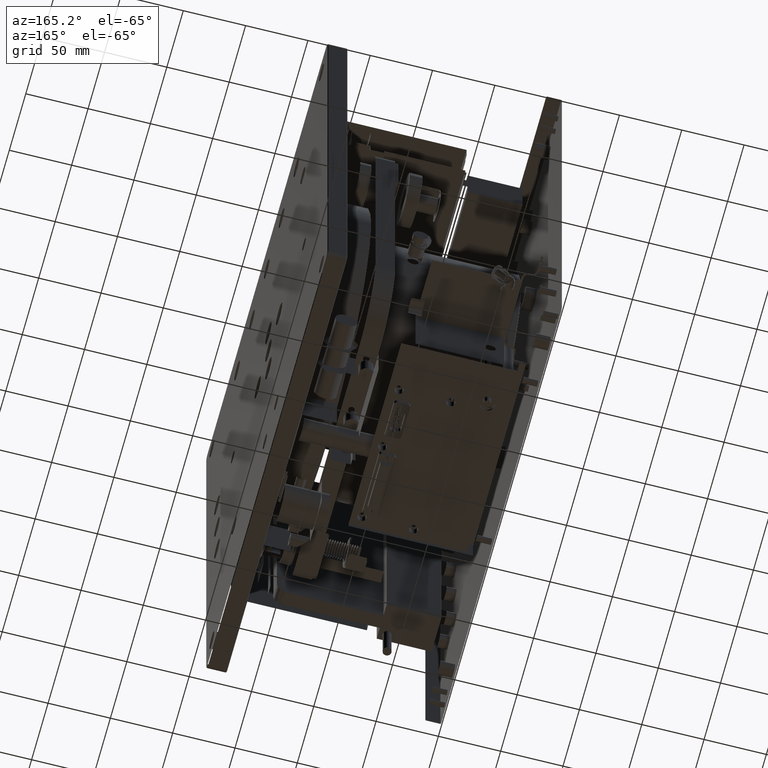
[diagram: clean part render]
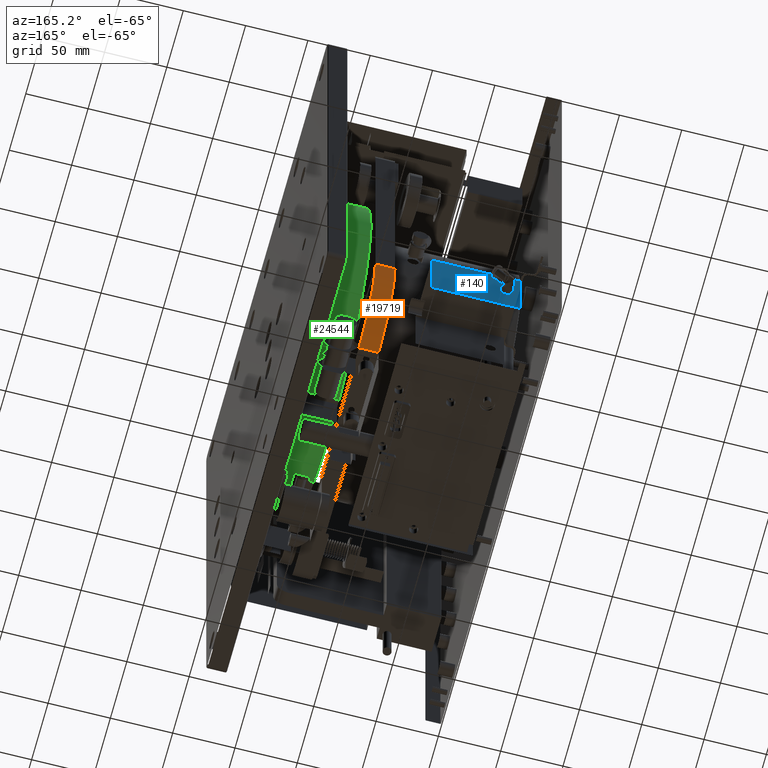
[diagram: same view with three faces highlighted in distinct colors, each labeled with its STEP entity id]
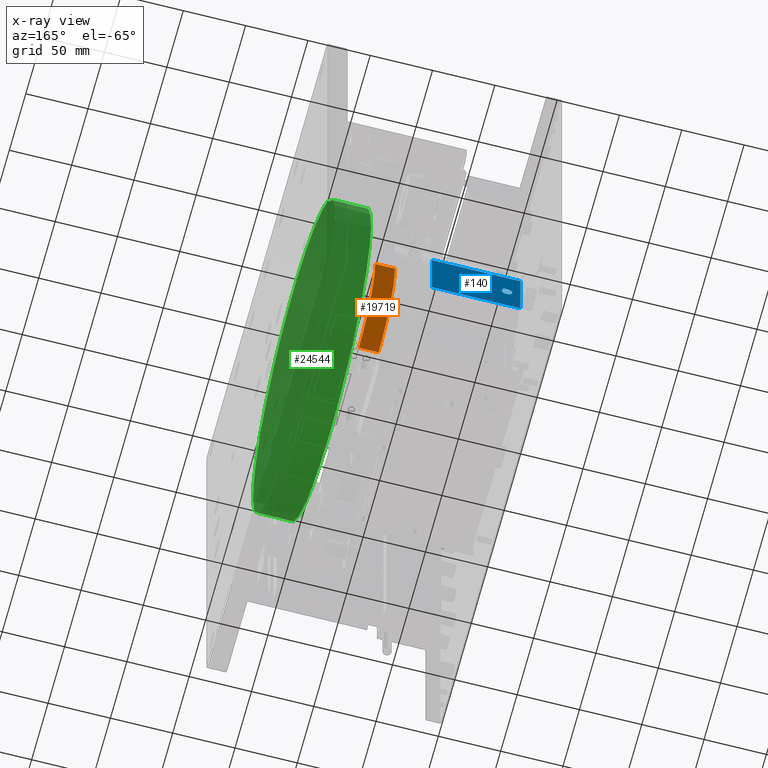
[diagram: x-ray of the same camera — body ghosted, the three highlighted faces saturated]
A machine part, auxiliary view with three faces highlighted in distinct colors.
The next image is the same camera in x-ray (body ghosted, the three faces saturated) — at least one of them is partly hidden behind the body in this view.
Their STEP definitions:

[orange] entity #19719 — the highlighted cylindrical surface (partial cylindrical patch) has radius 50 mm, axis along (1, 0, 0).
#779 = ORIENTED_EDGE ( 'NONE', *, *, #30532, .F. ) ;
#2985 = VERTEX_POINT ( 'NONE', #3533 ) ;
#3113 = EDGE_LOOP ( 'NONE', ( #39696, #8197, #41751, #779 ) ) ;
#3533 = CARTESIAN_POINT ( 'NONE',  ( -64.30929485513503607, 72.01103510650622752, 92.50000000000001421 ) ) ;
#3613 = CIRCLE ( 'NONE', #4329, 49.99999999999998579 ) ;
#4299 = DIRECTION ( 'NONE',  ( 1.000000000000000000, 0.000000000000000000, 0.000000000000000000 ) ) ;
#4329 = AXIS2_PLACEMENT_3D ( 'NONE', #28907, #17697, #10669 ) ;
#5075 = AXIS2_PLACEMENT_3D ( 'NONE', #18361, #4299, #18591 ) ;
#8197 = ORIENTED_EDGE ( 'NONE', *, *, #30821, .T. ) ;
#10669 = DIRECTION ( 'NONE',  ( 0.000000000000000000, 0.000000000000000000, 1.000000000000000000 ) ) ;
#11703 = DIRECTION ( 'NONE',  ( -1.000000000000000000, -0.000000000000000000, -0.000000000000000000 ) ) ;
#12582 = VECTOR ( 'NONE', #29594, 1000.000000000000000 ) ;
#17184 = CARTESIAN_POINT ( 'NONE',  ( -64.30929485513503607, 72.01103510650622752, 142.5000000000000568 ) ) ;
#17697 = DIRECTION ( 'NONE',  ( -1.000000000000000000, -0.000000000000000000, -0.000000000000000000 ) ) ;
#18361 = CARTESIAN_POINT ( 'NONE',  ( -440.9337532602742726, 72.01103510650622752, 142.5000000000000568 ) ) ;
#18591 = DIRECTION ( 'NONE',  ( 0.000000000000000000, 0.000000000000000000, -1.000000000000000000 ) ) ;
#18609 = CARTESIAN_POINT ( 'NONE',  ( -440.9337532602742726, 72.01103510650622752, 92.50000000000002842 ) ) ;
#19321 = CIRCLE ( 'NONE', #22287, 50.00000000000001421 ) ;
#19404 = VERTEX_POINT ( 'NONE', #28718 ) ;
#19719 = ADVANCED_FACE ( 'NONE', ( #39676 ), #36371, .T. ) ;
#19769 = EDGE_CURVE ( 'NONE', #44444, #19404, #37066, .T. ) ;
#22287 = AXIS2_PLACEMENT_3D ( 'NONE', #17184, #11703, #24429 ) ;
#24429 = DIRECTION ( 'NONE',  ( 0.000000000000000000, 0.000000000000000000, -1.000000000000000000 ) ) ;
#26086 = CARTESIAN_POINT ( 'NONE',  ( -440.9337532602742726, 122.0110351065062417, 142.5000000000000568 ) ) ;
#26239 = CARTESIAN_POINT ( 'NONE',  ( -80.10929485513504744, 122.0110351065062275, 142.5000000000000284 ) ) ;
#26522 = VERTEX_POINT ( 'NONE', #38525 ) ;
#28718 = CARTESIAN_POINT ( 'NONE',  ( -64.30929485513503607, 122.0110351065062417, 142.5000000000000568 ) ) ;
#28907 = CARTESIAN_POINT ( 'NONE',  ( -80.10929485513504744, 72.01103510650622752, 142.5000000000000568 ) ) ;
#29594 = DIRECTION ( 'NONE',  ( -1.000000000000000000, -0.000000000000000000, -0.000000000000000000 ) ) ;
#30532 = EDGE_CURVE ( 'NONE', #44444, #26522, #3613, .T. ) ;
#30610 = EDGE_CURVE ( 'NONE', #2985, #26522, #36855, .T. ) ;
#30821 = EDGE_CURVE ( 'NONE', #19404, #2985, #19321, .T. ) ;
#33327 = DIRECTION ( 'NONE',  ( 1.000000000000000000, 0.000000000000000000, 0.000000000000000000 ) ) ;
#36371 = CYLINDRICAL_SURFACE ( 'NONE', #5075, 50.00000000000001421 ) ;
#36855 = LINE ( 'NONE', #18609, #12582 ) ;
#37066 = LINE ( 'NONE', #26086, #38008 ) ;
#38008 = VECTOR ( 'NONE', #33327, 1000.000000000000000 ) ;
#38525 = CARTESIAN_POINT ( 'NONE',  ( -80.20929485513502755, 72.01103510650622752, 92.59999999999998010 ) ) ;
#39676 = FACE_OUTER_BOUND ( 'NONE', #3113, .T. ) ;
#39696 = ORIENTED_EDGE ( 'NONE', *, *, #19769, .T. ) ;
#41751 = ORIENTED_EDGE ( 'NONE', *, *, #30610, .T. ) ;
#44444 = VERTEX_POINT ( 'NONE', #26239 ) ;

[blue] entity #140 — the highlighted planar face has unit normal (0, -1, 0).
#140 = ADVANCED_FACE ( 'NONE', ( #18009, #46074 ), #42576, .T. ) ;
#1699 = CARTESIAN_POINT ( 'NONE',  ( -160.9093622545033782, 139.0110351065007421, 112.5591657451990955 ) ) ;
#1808 = CARTESIAN_POINT ( 'NONE',  ( -169.6062502132572263, 139.0110351065007990, 110.9002645630531845 ) ) ;
#1934 = CARTESIAN_POINT ( 'NONE',  ( -161.9388443503072779, 139.0110351065007990, 114.8356305523950454 ) ) ;
#2043 = CARTESIAN_POINT ( 'NONE',  ( -169.7093285548192796, 139.0110351065007990, 112.2795828725768104 ) ) ;
#2164 = CARTESIAN_POINT ( 'NONE',  ( -161.2676348316066708, 139.0110351065007990, 113.7399502215289289 ) ) ;
#3403 = CARTESIAN_POINT ( 'NONE',  ( -168.1449254075864701, 139.0110351065007990, 115.3704505047781765 ) ) ;
#3987 = DIRECTION ( 'NONE',  ( -4.380129871584119371E-32, -4.341893780608005015E-48, -1.000000000000000000 ) ) ;
#4494 = CARTESIAN_POINT ( 'NONE',  ( -163.9184212485371290, 139.0110351065007990, 116.1755419749589464 ) ) ;
#4730 = CARTESIAN_POINT ( 'NONE',  ( -162.4125871505877967, 139.0110351065007990, 115.3257794595464958 ) ) ;
#5445 = CARTESIAN_POINT ( 'NONE',  ( -161.2461495493091945, 139.0110351065007990, 113.6885440690985973 ) ) ;
#5554 = CARTESIAN_POINT ( 'NONE',  ( -169.4498562198529896, 139.0110351065007990, 113.4890952117561795 ) ) ;
#5680 = CARTESIAN_POINT ( 'NONE',  ( -161.9835153955891656, 139.0110351065007990, 109.1032922954481705 ) ) ;
#5790 = CARTESIAN_POINT ( 'NONE',  ( -169.1853575940655219, 139.0110351065007990, 109.9083087309309406 ) ) ;
#6605 = LINE ( 'NONE', #39554, #12010 ) ;
#6803 = EDGE_CURVE ( 'NONE', #40900, #30300, #6605, .T. ) ;
#8169 = CARTESIAN_POINT ( 'NONE',  ( -165.3092948551350503, 139.0110351065007990, 107.5999999999999801 ) ) ;
#8248 = CARTESIAN_POINT ( 'NONE',  ( -163.5515846336945174, 139.0110351065007706, 116.0364173110123573 ) ) ;
#8963 = CARTESIAN_POINT ( 'NONE',  ( -161.0604983257608751, 139.0110351065007990, 110.8401101261984536 ) ) ;
#9079 = CARTESIAN_POINT ( 'NONE',  ( -167.6535267381442509, 139.0110351065007990, 108.2757216452965423 ) ) ;
#9200 = CARTESIAN_POINT ( 'NONE',  ( -161.2045635270412447, 139.0110351065007990, 110.4149066527740075 ) ) ;
#9307 = CARTESIAN_POINT ( 'NONE',  ( -169.3724401609582060, 139.0110351065007990, 110.3114559308926204 ) ) ;
#9426 = CARTESIAN_POINT ( 'NONE',  ( -161.5467443317046730, 139.0110351065007990, 109.7177284584004155 ) ) ;
#9980 = CARTESIAN_POINT ( 'NONE',  ( -169.3865568755728077, 139.0110351065008274, 110.3458369307415694 ) ) ;
#10182 = CARTESIAN_POINT ( 'NONE',  ( -176.3092948551350503, 139.0110351065007990, 86.99999999999995737 ) ) ;
#10207 = CARTESIAN_POINT ( 'NONE',  ( -165.8689876501973117, 139.0110351065007706, 116.3999999999999488 ) ) ;
#10436 = CARTESIAN_POINT ( 'NONE',  ( -166.9634579244003589, 139.0110351065007421, 116.0772620204332384 ) ) ;
#10967 = DIRECTION ( 'NONE',  ( 0.000000000000000000, -1.504367242039507556E-16, -1.000000000000000000 ) ) ;
#11128 = CARTESIAN_POINT ( 'NONE',  ( -166.9978389242556887, 139.0110351065007990, 116.0631453058147997 ) ) ;
#11302 = CARTESIAN_POINT ( 'NONE',  ( -163.8201603932370176, 139.0110351065007990, 116.1405458312697192 ) ) ;
#11601 = VECTOR ( 'NONE', #41185, 1000.000000000000000 ) ;
#12010 = VECTOR ( 'NONE', #39778, 1000.000000000000000 ) ;
#12177 = ORIENTED_EDGE ( 'NONE', *, *, #37419, .F. ) ;
#12219 = CARTESIAN_POINT ( 'NONE',  ( -163.1550031120716540, 139.0110351065007706, 115.8372969854397070 ) ) ;
#12457 = CARTESIAN_POINT ( 'NONE',  ( -163.6207507860299586, 139.0110351065008274, 107.9368546941774127 ) ) ;
#12580 = CARTESIAN_POINT ( 'NONE',  ( -167.5915663967200260, 139.0110351065007990, 108.2374494765572592 ) ) ;
#12704 = CARTESIAN_POINT ( 'NONE',  ( -161.4332321161942616, 139.0110351065007990, 114.0916912690359339 ) ) ;
#12822 = CARTESIAN_POINT ( 'NONE',  ( -169.4140261832263263, 139.0110351065007990, 113.5850933472293178 ) ) ;
#12924 = VERTEX_POINT ( 'NONE', #16649 ) ;
#12937 = CARTESIAN_POINT ( 'NONE',  ( -161.2728775441368612, 139.0110351065007990, 110.2422897785427267 ) ) ;
#13265 = CARTESIAN_POINT ( 'NONE',  ( -168.9514332601672777, 139.0110351065008274, 109.5301289788988583 ) ) ;
#13484 = CARTESIAN_POINT ( 'NONE',  ( -168.2060025597282049, 139.0110351065007990, 108.6742205405031285 ) ) ;
#13537 = VERTEX_POINT ( 'NONE', #10182 ) ;
#14485 = DIRECTION ( 'NONE',  ( 9.912705577009975492E-17, -1.000000000000000000, 1.504367242039507556E-16 ) ) ;
#15043 = CARTESIAN_POINT ( 'NONE',  ( -163.7242015079048656, 139.0110351065007706, 116.1047313280902245 ) ) ;
#15326 = EDGE_CURVE ( 'NONE', #25637, #23032, #38147, .T. ) ;
#15577 = EDGE_CURVE ( 'NONE', #12924, #40900, #19877, .T. ) ;
#15980 = CARTESIAN_POINT ( 'NONE',  ( -162.8394238340315496, 139.0110351065008558, 108.3578615949670620 ) ) ;
#16086 = CARTESIAN_POINT ( 'NONE',  ( -167.2690884752046827, 139.0110351065007990, 108.0556071336484365 ) ) ;
#16215 = CARTESIAN_POINT ( 'NONE',  ( -161.1337270788554292, 139.0110351065007990, 110.6091915885353103 ) ) ;
#16333 = CARTESIAN_POINT ( 'NONE',  ( -169.4257135765372482, 139.0110351065007990, 113.5544690147918914 ) ) ;
#16449 = CARTESIAN_POINT ( 'NONE',  ( -162.3052798290768237, 139.0110351065007990, 108.7814490964446748 ) ) ;
#16596 = EDGE_LOOP ( 'NONE', ( #27090, #43738 ) ) ;
#16649 = CARTESIAN_POINT ( 'NONE',  ( -105.3092948551350787, 139.0110351065007990, 86.99999999999995737 ) ) ;
#16782 = CARTESIAN_POINT ( 'NONE',  ( -167.9709818975715336, 139.0110351065007706, 108.4832121720033058 ) ) ;
#17002 = CARTESIAN_POINT ( 'NONE',  ( -166.0011659898908647, 139.0110351065007990, 107.6386164344156384 ) ) ;
#17231 = CARTESIAN_POINT ( 'NONE',  ( -167.7791658762218958, 139.0110351065007990, 115.6421384050412797 ) ) ;
#17461 = CARTESIAN_POINT ( 'NONE',  ( -169.1465918405691866, 139.0110351065007990, 114.1542917430679154 ) ) ;
#18009 = FACE_OUTER_BOUND ( 'NONE', #23478, .T. ) ;
#18505 = VECTOR ( 'NONE', #25567, 1000.000000000000000 ) ;
#19488 = CARTESIAN_POINT ( 'NONE',  ( -162.6533021617805161, 139.0110351065007990, 108.4911828912574379 ) ) ;
#19725 = CARTESIAN_POINT ( 'NONE',  ( -161.6671564501057503, 139.0110351065007706, 114.4698710211105492 ) ) ;
#19877 = LINE ( 'NONE', #31319, #11601 ) ;
#19959 = CARTESIAN_POINT ( 'NONE',  ( -161.5850165004326868, 139.0110351065007706, 109.6557681169916094 ) ) ;
#20068 = CARTESIAN_POINT ( 'NONE',  ( -169.3457121661433291, 139.0110351065007990, 113.7577102214438014 ) ) ;
#20294 = CARTESIAN_POINT ( 'NONE',  ( -169.0733587931567001, 139.0110351065007706, 109.7165732975183232 ) ) ;
#20732 = CARTESIAN_POINT ( 'NONE',  ( -169.6707373951666682, 139.0110351065007706, 112.6917221172684123 ) ) ;
#21267 = CARTESIAN_POINT ( 'NONE',  ( -105.3092948551350787, 139.0110351065007990, 136.9999999999999432 ) ) ;
#21664 = CARTESIAN_POINT ( 'NONE',  ( -167.1680353343726040, 139.0110351065007706, 115.9893562254924149 ) ) ;
#21786 = CARTESIAN_POINT ( 'NONE',  ( -176.3092948551350503, 139.0110351065007990, 137.9999999999999432 ) ) ;
#22751 = CARTESIAN_POINT ( 'NONE',  ( -165.3092948551350503, 139.0110351065007990, 116.3999999999999631 ) ) ;
#23032 = VERTEX_POINT ( 'NONE', #32453 ) ;
#23241 = CARTESIAN_POINT ( 'NONE',  ( -161.7112406765224648, 139.0110351065007990, 114.5337333683539924 ) ) ;
#23472 = CARTESIAN_POINT ( 'NONE',  ( -161.8004777463895039, 139.0110351065007990, 114.6559926933541504 ) ) ;
#23478 = EDGE_LOOP ( 'NONE', ( #44367, #39499, #12177, #44205 ) ) ;
#23708 = CARTESIAN_POINT ( 'NONE',  ( -161.1928761337328808, 139.0110351065007990, 110.4455309852025238 ) ) ;
#23817 = CARTESIAN_POINT ( 'NONE',  ( -166.8637844928828713, 139.0110351065007990, 107.8835894402399873 ) ) ;
#24487 = CARTESIAN_POINT ( 'NONE',  ( -169.0718453785742099, 139.0110351065007990, 114.2822715415877184 ) ) ;
#25227 = VECTOR ( 'NONE', #3987, 1000.000000000000000 ) ;
#25344 = LINE ( 'NONE', #28611, #18505 ) ;
#25413 = CARTESIAN_POINT ( 'NONE',  ( -166.9451631924047774, 139.0110351065007990, 116.0846324522720181 ) ) ;
#25567 = DIRECTION ( 'NONE',  ( -1.000000000000000000, 4.345958878198159709E-48, 2.888894916580499623E-32 ) ) ;
#25637 = VERTEX_POINT ( 'NONE', #28504 ) ;
#25737 = CARTESIAN_POINT ( 'NONE',  ( -163.6551317858778418, 139.0110351065007990, 107.9227379795626405 ) ) ;
#26518 = CARTESIAN_POINT ( 'NONE',  ( -162.6476078126873119, 139.0110351065007990, 115.5167878279891909 ) ) ;
#26758 = CARTESIAN_POINT ( 'NONE',  ( -161.2320328346959570, 139.0110351065007990, 113.6541630692538405 ) ) ;
#26879 = CARTESIAN_POINT ( 'NONE',  ( -169.2986510806513536, 139.0110351065007990, 110.1412595208000766 ) ) ;
#26996 = CARTESIAN_POINT ( 'NONE',  ( -161.0123394970128743, 139.0110351065007990, 113.0997354369617653 ) ) ;
#27090 = ORIENTED_EDGE ( 'NONE', *, *, #39034, .T. ) ;
#27225 = CARTESIAN_POINT ( 'NONE',  ( -163.5693446335954206, 139.0110351065007990, 107.9583399764770633 ) ) ;
#27549 = CARTESIAN_POINT ( 'NONE',  ( -169.3509548786588823, 139.0110351065007706, 110.2600497784565476 ) ) ;
#27766 = CARTESIAN_POINT ( 'NONE',  ( -165.3092948551350503, 139.0110351065007990, 107.5999999999999801 ) ) ;
#28449 = CARTESIAN_POINT ( 'NONE',  ( -168.3133098812252229, 139.0110351065007706, 115.2185509035292199 ) ) ;
#28504 = CARTESIAN_POINT ( 'NONE',  ( -165.3092948551350503, 139.0110351065007990, 116.3999999999999631 ) ) ;
#28611 = CARTESIAN_POINT ( 'NONE',  ( -105.3092948551350787, 139.0110351065007990, 86.99999999999995737 ) ) ;
#28681 = CARTESIAN_POINT ( 'NONE',  ( -165.3092948551350503, 139.0110351065007990, 116.3999999999999631 ) ) ;
#28904 = CARTESIAN_POINT ( 'NONE',  ( -167.0492450767004868, 139.0110351065007990, 116.0416600235100049 ) ) ;
#29461 = CARTESIAN_POINT ( 'NONE',  ( -164.2097298194159691, 139.0110351065007706, 107.7029771584417546 ) ) ;
#29780 = CARTESIAN_POINT ( 'NONE',  ( -163.3495012350655031, 139.0110351065007990, 115.9443928663515493 ) ) ;
#29898 = CARTESIAN_POINT ( 'NONE',  ( -176.3092948551350503, 139.0110351065007990, 136.9999999999999432 ) ) ;
#30021 = CARTESIAN_POINT ( 'NONE',  ( -165.0296268297083202, 139.0110351065007706, 116.3999999999999631 ) ) ;
#30254 = CARTESIAN_POINT ( 'NONE',  ( -161.3199386296110163, 139.0110351065007990, 113.8587404791750544 ) ) ;
#30300 = VERTEX_POINT ( 'NONE', #29898 ) ;
#30363 = CARTESIAN_POINT ( 'NONE',  ( -165.5889628805618656, 139.0110351065007990, 107.5999999999999659 ) ) ;
#30492 = CARTESIAN_POINT ( 'NONE',  ( -161.5452309171074603, 139.0110351065007706, 114.2834267024626627 ) ) ;
#30720 = CARTESIAN_POINT ( 'NONE',  ( -162.4736643027395928, 139.0110351065007706, 108.6295494951760787 ) ) ;
#30833 = CARTESIAN_POINT ( 'NONE',  ( -166.8943882023652350, 139.0110351065007990, 107.8952686719097045 ) ) ;
#31048 = CARTESIAN_POINT ( 'NONE',  ( -168.5278457586696561, 139.0110351065007990, 108.9959849739171602 ) ) ;
#31275 = CARTESIAN_POINT ( 'NONE',  ( -166.7984293170331114, 139.0110351065007990, 107.8594541687302524 ) ) ;
#31319 = CARTESIAN_POINT ( 'NONE',  ( -105.3092948551350787, 139.0110351065007990, 136.9999999999999432 ) ) ;
#31969 = CARTESIAN_POINT ( 'NONE',  ( -167.8430282235173081, 139.0110351065007706, 115.5980541785877591 ) ) ;
#32202 = CARTESIAN_POINT ( 'NONE',  ( -167.4009861242543025, 139.0110351065007990, 115.8760627388986677 ) ) ;
#32453 = CARTESIAN_POINT ( 'NONE',  ( -165.3092948551350503, 139.0110351065007990, 107.5999999999999801 ) ) ;
#33292 = CARTESIAN_POINT ( 'NONE',  ( -162.0907439515775650, 139.0110351065007990, 115.0040150260579281 ) ) ;
#33766 = CARTESIAN_POINT ( 'NONE',  ( -160.9092611554508778, 139.0110351065007990, 111.7204171274003954 ) ) ;
#33998 = CARTESIAN_POINT ( 'NONE',  ( -163.0258681526582336, 139.0110351065007990, 108.2359360619795723 ) ) ;
#34244 = CARTESIAN_POINT ( 'NONE',  ( -161.3649019888084126, 139.0110351065007990, 110.0402063799011643 ) ) ;
#34354 = CARTESIAN_POINT ( 'NONE',  ( -169.2536877214794515, 139.0110351065007706, 113.9597936200752741 ) ) ;
#34584 = CARTESIAN_POINT ( 'NONE',  ( -169.3939294162644558, 139.0110351065007990, 110.3641369877675658 ) ) ;
#34795 = CARTESIAN_POINT ( 'NONE',  ( -166.4692964920221527, 139.0110351065007990, 107.7512477014613097 ) ) ;
#35772 = EDGE_CURVE ( 'NONE', #30300, #13537, #44233, .T. ) ;
#35939 = CARTESIAN_POINT ( 'NONE',  ( -166.4088598908881238, 139.0110351065007706, 116.2970228415581744 ) ) ;
#36498 = CARTESIAN_POINT ( 'NONE',  ( -163.6734265178643000, 139.0110351065008274, 107.9153675477279108 ) ) ;
#36801 = CARTESIAN_POINT ( 'NONE',  ( -162.9650629721286919, 139.0110351065007990, 115.7242783547052341 ) ) ;
#37419 = EDGE_CURVE ( 'NONE', #12924, #13537, #25344, .T. ) ;
#37516 = CARTESIAN_POINT ( 'NONE',  ( -162.7755614867807310, 139.0110351065007990, 108.4019458213893898 ) ) ;
#37627 = CARTESIAN_POINT ( 'NONE',  ( -169.4848626314146713, 139.0110351065007990, 113.3908084114472388 ) ) ;
#37751 = CARTESIAN_POINT ( 'NONE',  ( -161.7925070271338654, 139.0110351065007706, 109.3383129575602482 ) ) ;
#37859 = CARTESIAN_POINT ( 'NONE',  ( -167.0670050765756116, 139.0110351065007706, 107.9635826889876142 ) ) ;
#38147 = B_SPLINE_CURVE_WITH_KNOTS ( 'NONE', 3,
 ( #22751, #30021, #43817, #40320, #4494, #11302, #44295, #15043, #8248, #29780, #12219, #44053, #36801, #26518, #4730, #33292, #1934, #23472, #23241, #19725, #30492, #12704, #30254, #2164, #5445, #26758, #44758, #26996, #1699, #33766, #41264, #8963, #16215, #44521, #23708, #9200, #12937, #34244, #41028, #9426, #19959, #37751, #5680, #16449, #30720, #19488, #37516, #15980, #33998, #41490, #44985, #27225, #12457, #25737, #36498, #29461, #43507, #8169 ),
 .UNSPECIFIED., .F., .F.,
 ( 4, 1, 1, 1, 2, 2, 1, 2, 2, 2, 1, 2, 2, 1, 1, 1, 2, 2, 2, 1, 1, 1, 2, 2, 1, 2, 2, 2, 1, 2, 2, 1, 1, 1, 2, 2, 4 ),
 ( 0.000000000000000000, 0.06249999999997345179, 0.09374999999996017075, 0.1093749999999565625, 0.1171874999999582140, 0.1249999999999598654, 0.1562499999999642786, 0.1718749999999671652, 0.1874999999999700240, 0.2499999999999719669, 0.2812499999999759637, 0.2968749999999786282, 0.3124999999999813483, 0.3437499999999842903, 0.3593749999999856781, 0.3671874999999865108, 0.3710937499999867328, 0.3749999999999869549, 0.5000000000000505151, 0.5625000000000822675, 0.5937500000000981437, 0.6093750000001052491, 0.6171875000001092459, 0.6250000000001132427, 0.6562500000001221245, 0.6718750000001252332, 0.6875000000001284528, 0.7500000000001297851, 0.7812500000001275646, 0.7968750000001263434, 0.8125000000001251221, 0.8437500000001244560, 0.8593750000001234568, 0.8671875000001229017, 0.8710937500001226796, 0.8750000000001224576, 1.000000000000000000 ),
 .UNSPECIFIED. ) ;
#38311 = CARTESIAN_POINT ( 'NONE',  ( -166.7001684617330284, 139.0110351065007990, 107.8244580250409967 ) ) ;
#38524 = CARTESIAN_POINT ( 'NONE',  ( -169.7092274557666087, 139.0110351065007421, 111.4408342548463082 ) ) ;
#38993 = CARTESIAN_POINT ( 'NONE',  ( -168.8260826831503607, 139.0110351065007706, 114.6616870424138028 ) ) ;
#39034 = EDGE_CURVE ( 'NONE', #23032, #25637, #42481, .T. ) ;
#39499 = ORIENTED_EDGE ( 'NONE', *, *, #35772, .T. ) ;
#39554 = CARTESIAN_POINT ( 'NONE',  ( -105.3092948551350787, 139.0110351065007990, 136.9999999999999432 ) ) ;
#39762 = CARTESIAN_POINT ( 'NONE',  ( -105.3092948551350787, 139.0110351065007990, 136.9999999999999432 ) ) ;
#39778 = DIRECTION ( 'NONE',  ( -1.000000000000000000, -9.912705577009975492E-17, 1.491234955003614274E-32 ) ) ;
#40320 = CARTESIAN_POINT ( 'NONE',  ( -164.1492932182479194, 139.0110351065007990, 116.2487522985386192 ) ) ;
#40717 = AXIS2_PLACEMENT_3D ( 'NONE', #21267, #14485, #10967 ) ;
#40900 = VERTEX_POINT ( 'NONE', #39762 ) ;
#41028 = CARTESIAN_POINT ( 'NONE',  ( -161.4719978697148690, 139.0110351065008274, 109.8457082569135679 ) ) ;
#41144 = CARTESIAN_POINT ( 'NONE',  ( -169.5580913845092539, 139.0110351065007990, 113.1598898737715899 ) ) ;
#41185 = DIRECTION ( 'NONE',  ( -0.000000000000000000, 1.504367242039507556E-16, 1.000000000000000000 ) ) ;
#41264 = CARTESIAN_POINT ( 'NONE',  ( -160.9478523151034040, 139.0110351065007706, 111.3082778826916694 ) ) ;
#41374 = CARTESIAN_POINT ( 'NONE',  ( -168.6797453599227765, 139.0110351065007990, 109.1643694475614552 ) ) ;
#41490 = CARTESIAN_POINT ( 'NONE',  ( -163.2176035860744321, 139.0110351065007990, 108.1239372610717879 ) ) ;
#41825 = CARTESIAN_POINT ( 'NONE',  ( -168.8181119638491623, 139.0110351065007990, 109.3440073066116582 ) ) ;
#42040 = CARTESIAN_POINT ( 'NONE',  ( -168.9073490337275985, 139.0110351065007990, 109.4662666316241939 ) ) ;
#42265 = CARTESIAN_POINT ( 'NONE',  ( -167.9652875485334960, 139.0110351065007990, 115.5088171087066797 ) ) ;
#42481 = B_SPLINE_CURVE_WITH_KNOTS ( 'NONE', 3,
 ( #27766, #30363, #17002, #34795, #38311, #31275, #23817, #30833, #37859, #16086, #45536, #12580, #9079, #16782, #13484, #31048, #41374, #41825, #42040, #13265, #20294, #5790, #26879, #27549, #9307, #9980, #34584, #1808, #38524, #2043, #20732, #41144, #37627, #5554, #16333, #12822, #20068, #34354, #17461, #24487, #45998, #38993, #43183, #28449, #3403, #42265, #31969, #17231, #42501, #32202, #21664, #28904, #11128, #10436, #25413, #35939, #10207, #28681 ),
 .UNSPECIFIED., .F., .F.,
 ( 4, 1, 1, 1, 2, 2, 1, 2, 2, 2, 1, 2, 2, 1, 1, 1, 2, 2, 2, 1, 1, 1, 2, 2, 1, 2, 2, 2, 1, 2, 2, 1, 1, 1, 2, 2, 4 ),
 ( 0.000000000000000000, 0.06250000000001912359, 0.09375000000002868539, 0.1093750000000304479, 0.1171875000000308364, 0.1250000000000311973, 0.1562500000000272837, 0.1718750000000260070, 0.1875000000000247025, 0.2500000000000339173, 0.2812500000000364708, 0.2968750000000348055, 0.3125000000000331402, 0.3437500000000299205, 0.3593750000000295874, 0.3671875000000307532, 0.3710937500000301426, 0.3750000000000295874, 0.5000000000000730527, 0.5625000000000948130, 0.5937500000001056932, 0.6093750000001086908, 0.6171875000001112443, 0.6250000000001136868, 0.6562500000001190159, 0.6718750000001229017, 0.6875000000001267875, 0.7500000000001346701, 0.7812500000001365574, 0.7968750000001375566, 0.8125000000001385558, 0.8437500000001340039, 0.8593750000001323386, 0.8671875000001322276, 0.8710937500001288969, 0.8750000000001254552, 1.000000000000000000 ),
 .UNSPECIFIED. ) ;
#42501 = CARTESIAN_POINT ( 'NONE',  ( -167.5927215576453477, 139.0110351065007990, 115.7640639380035026 ) ) ;
#42576 = PLANE ( 'NONE',  #40717 ) ;
#43183 = CARTESIAN_POINT ( 'NONE',  ( -168.6350743146171567, 139.0110351065007990, 114.8967077046038838 ) ) ;
#43507 = CARTESIAN_POINT ( 'NONE',  ( -164.7496020601066959, 139.0110351065007990, 107.5999999999999517 ) ) ;
#43738 = ORIENTED_EDGE ( 'NONE', *, *, #15326, .T. ) ;
#43817 = CARTESIAN_POINT ( 'NONE',  ( -164.6174237203792359, 139.0110351065007990, 116.3613835655843332 ) ) ;
#44053 = CARTESIAN_POINT ( 'NONE',  ( -163.0270233135502167, 139.0110351065007990, 115.7625505234427266 ) ) ;
#44205 = ORIENTED_EDGE ( 'NONE', *, *, #15577, .T. ) ;
#44233 = LINE ( 'NONE', #21786, #25227 ) ;
#44295 = CARTESIAN_POINT ( 'NONE',  ( -163.7548052173872577, 139.0110351065007706, 116.1164105597599132 ) ) ;
#44367 = ORIENTED_EDGE ( 'NONE', *, *, #6803, .T. ) ;
#44521 = CARTESIAN_POINT ( 'NONE',  ( -161.1687334904171962, 139.0110351065007990, 110.5109047882332618 ) ) ;
#44758 = CARTESIAN_POINT ( 'NONE',  ( -161.2246602940056164, 139.0110351065007990, 113.6358630122319084 ) ) ;
#44985 = CARTESIAN_POINT ( 'NONE',  ( -163.4505543759414650, 139.0110351065007990, 108.0106437744853736 ) ) ;
#45536 = CARTESIAN_POINT ( 'NONE',  ( -167.4635865981985603, 139.0110351065007706, 108.1627030145602362 ) ) ;
#45998 = CARTESIAN_POINT ( 'NONE',  ( -169.0335732098337189, 139.0110351065007706, 114.3442318830147428 ) ) ;
#46074 = FACE_BOUND ( 'NONE', #16596, .T. ) ;

[green] entity #24544 — the highlighted cylindrical surface (bore or boss wall) has radius 125 mm, axis along (1, 0, 0).
#3150 = EDGE_LOOP ( 'NONE', ( #36609 ) ) ;
#3648 = DIRECTION ( 'NONE',  ( 1.000000000000000000, 0.000000000000000000, 0.000000000000000000 ) ) ;
#3657 = DIRECTION ( 'NONE',  ( 0.000000000000000000, 0.000000000000000000, -1.000000000000000000 ) ) ;
#4058 = DIRECTION ( 'NONE',  ( -1.000000000000000000, -0.000000000000000000, -0.000000000000000000 ) ) ;
#5336 = CIRCLE ( 'NONE', #32260, 125.0000000000000284 ) ;
#7148 = CARTESIAN_POINT ( 'NONE',  ( -61.60929485513501191, -5.488964893494458153, 219.9999999999999716 ) ) ;
#10453 = FACE_OUTER_BOUND ( 'NONE', #41694, .T. ) ;
#14130 = CARTESIAN_POINT ( 'NONE',  ( -32.80929485513502186, -5.488964893494458153, 94.99999999999994316 ) ) ;
#16282 = CARTESIAN_POINT ( 'NONE',  ( -61.60929485513501191, -5.488964893494458153, 94.99999999999994316 ) ) ;
#20973 = DIRECTION ( 'NONE',  ( 0.000000000000000000, 0.000000000000000000, -1.000000000000000000 ) ) ;
#21442 = DIRECTION ( 'NONE',  ( 1.000000000000000000, 0.000000000000000000, 0.000000000000000000 ) ) ;
#22079 = CARTESIAN_POINT ( 'NONE',  ( -32.80929485513502186, -5.488964893494458153, 219.9999999999999716 ) ) ;
#24208 = VERTEX_POINT ( 'NONE', #16282 ) ;
#24544 = ADVANCED_FACE ( 'NONE', ( #35729, #10453 ), #35046, .T. ) ;
#24830 = CIRCLE ( 'NONE', #43477, 125.0000000000000284 ) ;
#24962 = CARTESIAN_POINT ( 'NONE',  ( -61.80929485513502897, -5.488964893494458153, 219.9999999999999716 ) ) ;
#32260 = AXIS2_PLACEMENT_3D ( 'NONE', #7148, #3648, #20973 ) ;
#35046 = CYLINDRICAL_SURFACE ( 'NONE', #37299, 125.0000000000000284 ) ;
#35729 = FACE_OUTER_BOUND ( 'NONE', #3150, .T. ) ;
#35907 = DIRECTION ( 'NONE',  ( 0.000000000000000000, 0.000000000000000000, -1.000000000000000000 ) ) ;
#36609 = ORIENTED_EDGE ( 'NONE', *, *, #45261, .T. ) ;
#36847 = ORIENTED_EDGE ( 'NONE', *, *, #40313, .T. ) ;
#37299 = AXIS2_PLACEMENT_3D ( 'NONE', #24962, #21442, #3657 ) ;
#38711 = VERTEX_POINT ( 'NONE', #14130 ) ;
#40313 = EDGE_CURVE ( 'NONE', #24208, #24208, #5336, .T. ) ;
#41694 = EDGE_LOOP ( 'NONE', ( #36847 ) ) ;
#43477 = AXIS2_PLACEMENT_3D ( 'NONE', #22079, #4058, #35907 ) ;
#45261 = EDGE_CURVE ( 'NONE', #38711, #38711, #24830, .T. ) ;